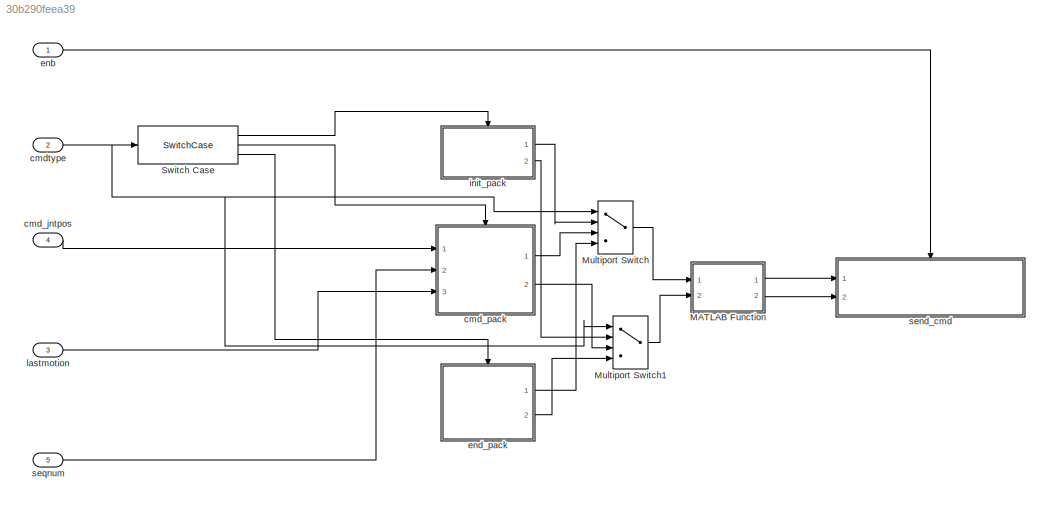
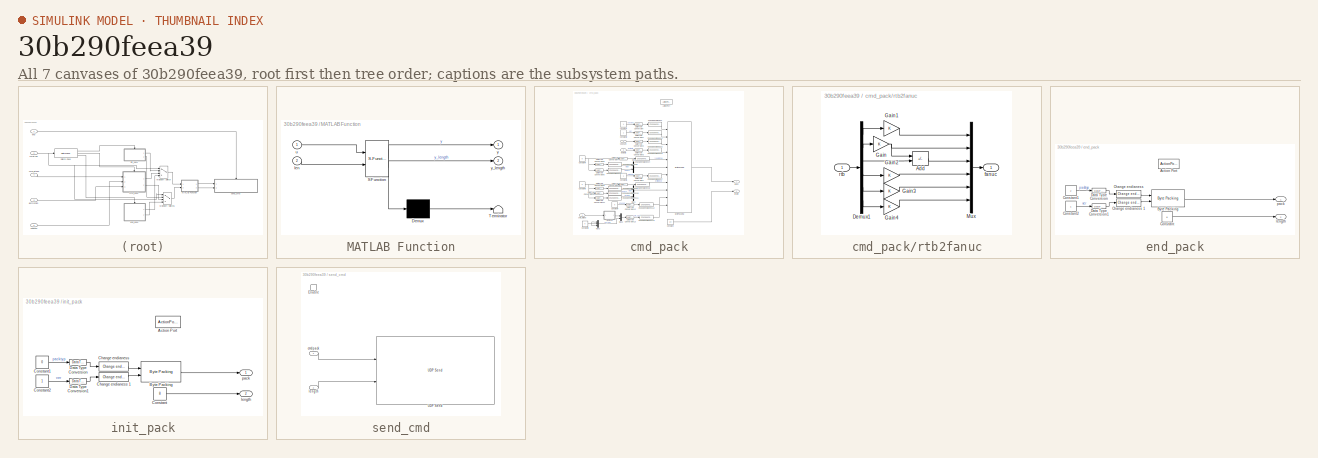
[diagram: thumbnail index - all 7 canvases of the model, root first then tree order]
MODEL slx_30b290feea39
KIND model
CONFIG AbsTol = auto
CONFIG EnableMultiTasking = off
CONFIG FixedStep = auto
CONFIG MaxStep = auto
CONFIG MinStep = auto
CONFIG RelTol = 1e-3
CONFIG SampleTimeConstraint = Unconstrained
CONFIG SolverName = FixedStepAuto
CONFIG StartTime = 0.0
CONFIG StopTime = inf
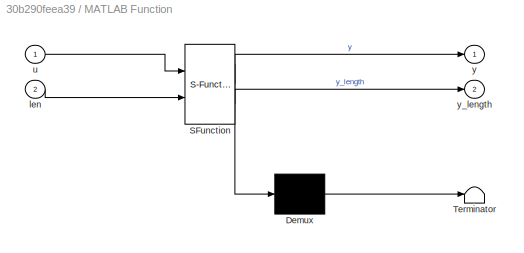
BLOCK [SubSystem] MATLAB Function
  ErrorFcn = Stateflow.Translate.translate
  PermitHierarchicalResolution = ExplicitOnly
  Ports = [2, 2]
  RequestExecContextInheritance = off
  SFBlockType = MATLAB Function
  TreatAsAtomicUnit = on
BLOCK [Demux] MATLAB Function/ Demux 
  Outputs = 1
  Ports = [1, 1]
BLOCK [S-Function] MATLAB Function/ SFunction 
  EnableBusSupport = on
  FunctionName = sf_sfun
  PortCounts = [2 3]
  Ports = [2, 3]
  SFcnIsStateOwnerBlock = off
  SFunctionDeploymentMode = off
  Tag = Stateflow S-Function 2
BLOCK [Terminator] MATLAB Function/ Terminator 
BLOCK [Inport] MATLAB Function/len
  Port = 2
BLOCK [Inport] MATLAB Function/u
BLOCK [Outport] MATLAB Function/y
  VectorParamsAs1DForOutWhenUnconnected = off
BLOCK [Outport] MATLAB Function/y_length
  Port = 2
  VectorParamsAs1DForOutWhenUnconnected = off
BLOCK [MultiPortSwitch] Multiport Switch
  AllowDiffInputSizes = on
  DataPortOrder = Zero-based contiguous
  InputSameDT = off
  Ports = [4, 1]
  SaturateOnIntegerOverflow = off
  zeroidx = on
BLOCK [MultiPortSwitch] Multiport Switch1
  DataPortOrder = Zero-based contiguous
  InputSameDT = off
  Ports = [4, 1]
  SaturateOnIntegerOverflow = off
  zeroidx = on
BLOCK [SwitchCase] Switch Case
  CaseConditions = {0,1,2}
  Ports = [1, 3]
  ShowDefaultCase = off
BLOCK [Inport] cmd_jntpos
  Port = 4
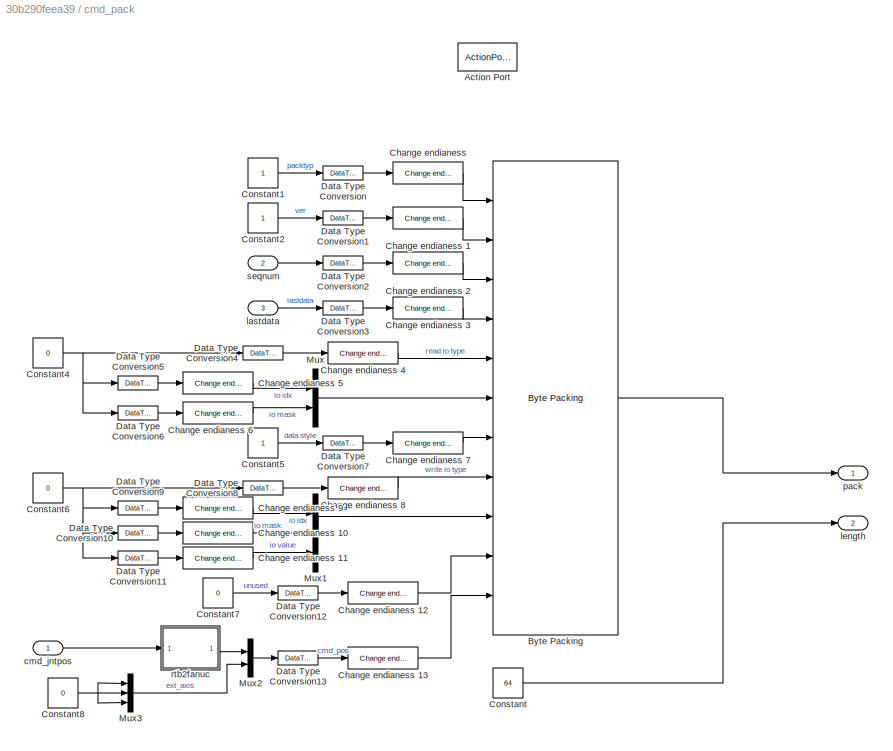
BLOCK [SubSystem] cmd_pack
  Ports = [3, 2, 0, 0, 0, 0, 0, 1]
  RequestExecContextInheritance = off
BLOCK [ActionPort] cmd_pack/Action Port
  ActionPortLabel = case [ 1 ]:
BLOCK [Reference] cmd_pack/Byte Packing   REF=slrealtimeutilitieslib/Byte Packing
  Ports = [11, 1]
  SourceBlock = slrealtimeutilitieslib/Byte Packing
  SourceProductBaseCode = XP
  SourceType = slrealtimebytepacking
BLOCK [Reference] cmd_pack/Change endianess   REF=slrealtimesharedmemorylib/Change endianess
  Ports = [1, 1]
  SourceBlock = slrealtimesharedmemorylib/Change endianess
  SourceProductBaseCode = XP
  SourceType = slreverseendian
BLOCK [Reference] cmd_pack/Change endianess 1  REF=slrealtimesharedmemorylib/Change endianess
  Ports = [1, 1]
  SourceBlock = slrealtimesharedmemorylib/Change endianess
  SourceProductBaseCode = XP
  SourceType = slreverseendian
BLOCK [Reference] cmd_pack/Change endianess 10  REF=slrealtimesharedmemorylib/Change endianess
  Ports = [1, 1]
  SourceBlock = slrealtimesharedmemorylib/Change endianess
  SourceProductBaseCode = XP
  SourceType = slreverseendian
BLOCK [Reference] cmd_pack/Change endianess 11  REF=slrealtimesharedmemorylib/Change endianess
  Ports = [1, 1]
  SourceBlock = slrealtimesharedmemorylib/Change endianess
  SourceProductBaseCode = XP
  SourceType = slreverseendian
BLOCK [Reference] cmd_pack/Change endianess 12  REF=slrealtimesharedmemorylib/Change endianess
  Ports = [1, 1]
  SourceBlock = slrealtimesharedmemorylib/Change endianess
  SourceProductBaseCode = XP
  SourceType = slreverseendian
BLOCK [Reference] cmd_pack/Change endianess 13  REF=slrealtimesharedmemorylib/Change endianess
  Ports = [1, 1]
  SourceBlock = slrealtimesharedmemorylib/Change endianess
  SourceProductBaseCode = XP
  SourceType = slreverseendian
BLOCK [Reference] cmd_pack/Change endianess 2  REF=slrealtimesharedmemorylib/Change endianess
  Ports = [1, 1]
  SourceBlock = slrealtimesharedmemorylib/Change endianess
  SourceProductBaseCode = XP
  SourceType = slreverseendian
BLOCK [Reference] cmd_pack/Change endianess 3  REF=slrealtimesharedmemorylib/Change endianess
  Ports = [1, 1]
  SourceBlock = slrealtimesharedmemorylib/Change endianess
  SourceProductBaseCode = XP
  SourceType = slreverseendian
BLOCK [Reference] cmd_pack/Change endianess 4  REF=slrealtimesharedmemorylib/Change endianess
  Ports = [1, 1]
  SourceBlock = slrealtimesharedmemorylib/Change endianess
  SourceProductBaseCode = XP
  SourceType = slreverseendian
BLOCK [Reference] cmd_pack/Change endianess 5  REF=slrealtimesharedmemorylib/Change endianess
  Ports = [1, 1]
  SourceBlock = slrealtimesharedmemorylib/Change endianess
  SourceProductBaseCode = XP
  SourceType = slreverseendian
BLOCK [Reference] cmd_pack/Change endianess 6  REF=slrealtimesharedmemorylib/Change endianess
  Ports = [1, 1]
  SourceBlock = slrealtimesharedmemorylib/Change endianess
  SourceProductBaseCode = XP
  SourceType = slreverseendian
BLOCK [Reference] cmd_pack/Change endianess 7  REF=slrealtimesharedmemorylib/Change endianess
  Ports = [1, 1]
  SourceBlock = slrealtimesharedmemorylib/Change endianess
  SourceProductBaseCode = XP
  SourceType = slreverseendian
BLOCK [Reference] cmd_pack/Change endianess 8  REF=slrealtimesharedmemorylib/Change endianess
  Ports = [1, 1]
  SourceBlock = slrealtimesharedmemorylib/Change endianess
  SourceProductBaseCode = XP
  SourceType = slreverseendian
BLOCK [Reference] cmd_pack/Change endianess 9  REF=slrealtimesharedmemorylib/Change endianess
  Ports = [1, 1]
  SourceBlock = slrealtimesharedmemorylib/Change endianess
  SourceProductBaseCode = XP
  SourceType = slreverseendian
BLOCK [Constant] cmd_pack/Constant
  Value = 64
BLOCK [Constant] cmd_pack/Constant1
BLOCK [Constant] cmd_pack/Constant2
BLOCK [Constant] cmd_pack/Constant4
  Value = 0
BLOCK [Constant] cmd_pack/Constant5
BLOCK [Constant] cmd_pack/Constant6
  Value = 0
BLOCK [Constant] cmd_pack/Constant7
  Value = 0
BLOCK [Constant] cmd_pack/Constant8
  Value = 0
BLOCK [DataTypeConversion] cmd_pack/Data Type Conversion
  OutDataTypeStr = uint32
  RndMeth = Floor
  SaturateOnIntegerOverflow = off
BLOCK [DataTypeConversion] cmd_pack/Data Type Conversion1
  OutDataTypeStr = uint32
  RndMeth = Floor
  SaturateOnIntegerOverflow = off
BLOCK [DataTypeConversion] cmd_pack/Data Type Conversion10
  OutDataTypeStr = uint16
  RndMeth = Floor
  SaturateOnIntegerOverflow = off
BLOCK [DataTypeConversion] cmd_pack/Data Type Conversion11
  OutDataTypeStr = uint16
  RndMeth = Floor
  SaturateOnIntegerOverflow = off
BLOCK [DataTypeConversion] cmd_pack/Data Type Conversion12
  OutDataTypeStr = uint16
  RndMeth = Floor
  SaturateOnIntegerOverflow = off
BLOCK [DataTypeConversion] cmd_pack/Data Type Conversion13
  OutDataTypeStr = single
  RndMeth = Floor
  SaturateOnIntegerOverflow = off
BLOCK [DataTypeConversion] cmd_pack/Data Type Conversion2
  OutDataTypeStr = uint32
  RndMeth = Floor
  SaturateOnIntegerOverflow = off
BLOCK [DataTypeConversion] cmd_pack/Data Type Conversion3
  OutDataTypeStr = uint8
  RndMeth = Floor
  SaturateOnIntegerOverflow = off
BLOCK [DataTypeConversion] cmd_pack/Data Type Conversion4
  OutDataTypeStr = uint8
  RndMeth = Floor
  SaturateOnIntegerOverflow = off
BLOCK [DataTypeConversion] cmd_pack/Data Type Conversion5
  OutDataTypeStr = uint16
  RndMeth = Floor
  SaturateOnIntegerOverflow = off
BLOCK [DataTypeConversion] cmd_pack/Data Type Conversion6
  OutDataTypeStr = uint16
  RndMeth = Floor
  SaturateOnIntegerOverflow = off
BLOCK [DataTypeConversion] cmd_pack/Data Type Conversion7
  OutDataTypeStr = uint8
  RndMeth = Floor
  SaturateOnIntegerOverflow = off
BLOCK [DataTypeConversion] cmd_pack/Data Type Conversion8
  OutDataTypeStr = uint8
  RndMeth = Floor
  SaturateOnIntegerOverflow = off
BLOCK [DataTypeConversion] cmd_pack/Data Type Conversion9
  OutDataTypeStr = uint16
  RndMeth = Floor
  SaturateOnIntegerOverflow = off
BLOCK [Mux] cmd_pack/Mux
  DisplayOption = bar
  Inputs = 2
  Ports = [2, 1]
BLOCK [Mux] cmd_pack/Mux1
  DisplayOption = bar
  Inputs = 3
  Ports = [3, 1]
BLOCK [Mux] cmd_pack/Mux2
  DisplayOption = bar
  Inputs = [6,3]
  Ports = [2, 1]
BLOCK [Mux] cmd_pack/Mux3
  DisplayOption = bar
  Inputs = 3
  Ports = [3, 1]
BLOCK [Inport] cmd_pack/cmd_jntpos
BLOCK [Inport] cmd_pack/lastdata
  Port = 3
BLOCK [Outport] cmd_pack/length
  Port = 2
  VectorParamsAs1DForOutWhenUnconnected = off
BLOCK [Outport] cmd_pack/pack
  VectorParamsAs1DForOutWhenUnconnected = off
BLOCK [SubSystem] cmd_pack/rtb2fanuc
  Ports = [1, 1]
  RequestExecContextInheritance = off
BLOCK [Sum] cmd_pack/rtb2fanuc/Add
  IconShape = rectangular
  Inputs = -+
  Ports = [2, 1]
BLOCK [Demux] cmd_pack/rtb2fanuc/Demux1
  Outputs = 6
  Ports = [1, 6]
BLOCK [Gain] cmd_pack/rtb2fanuc/Gain
BLOCK [Gain] cmd_pack/rtb2fanuc/Gain1
BLOCK [Gain] cmd_pack/rtb2fanuc/Gain2
BLOCK [Gain] cmd_pack/rtb2fanuc/Gain3
BLOCK [Gain] cmd_pack/rtb2fanuc/Gain4
BLOCK [Mux] cmd_pack/rtb2fanuc/Mux
  DisplayOption = bar
  Inputs = 6
  Ports = [6, 1]
BLOCK [Outport] cmd_pack/rtb2fanuc/fanuc
  VectorParamsAs1DForOutWhenUnconnected = off
BLOCK [Inport] cmd_pack/rtb2fanuc/rtb
BLOCK [Inport] cmd_pack/seqnum
  Port = 2
BLOCK [Inport] cmdtype
  Port = 2
BLOCK [Inport] enb
BLOCK [SubSystem] end_pack
  Ports = [0, 2, 0, 0, 0, 0, 0, 1]
  RequestExecContextInheritance = off
BLOCK [ActionPort] end_pack/Action Port
  ActionPortLabel = case [ 2 ]:
BLOCK [Reference] end_pack/Byte Packing   REF=slrealtimeutilitieslib/Byte Packing
  Ports = [2, 1]
  SourceBlock = slrealtimeutilitieslib/Byte Packing
  SourceProductBaseCode = XP
  SourceType = slrealtimebytepacking
BLOCK [Reference] end_pack/Change endianess   REF=slrealtimesharedmemorylib/Change endianess
  Ports = [1, 1]
  SourceBlock = slrealtimesharedmemorylib/Change endianess
  SourceProductBaseCode = XP
  SourceType = slreverseendian
BLOCK [Reference] end_pack/Change endianess 1  REF=slrealtimesharedmemorylib/Change endianess
  Ports = [1, 1]
  SourceBlock = slrealtimesharedmemorylib/Change endianess
  SourceProductBaseCode = XP
  SourceType = slreverseendian
BLOCK [Constant] end_pack/Constant
  Value = 8
BLOCK [Constant] end_pack/Constant1
  Value = 2
BLOCK [Constant] end_pack/Constant2
BLOCK [DataTypeConversion] end_pack/Data Type Conversion
  OutDataTypeStr = uint32
  RndMeth = Floor
  SaturateOnIntegerOverflow = off
BLOCK [DataTypeConversion] end_pack/Data Type Conversion1
  OutDataTypeStr = uint32
  RndMeth = Floor
  SaturateOnIntegerOverflow = off
BLOCK [Outport] end_pack/length
  Port = 2
  VectorParamsAs1DForOutWhenUnconnected = off
BLOCK [Outport] end_pack/pack
  VectorParamsAs1DForOutWhenUnconnected = off
BLOCK [SubSystem] init_pack
  Ports = [0, 2, 0, 0, 0, 0, 0, 1]
  RequestExecContextInheritance = off
  TreatAsAtomicUnit = on
BLOCK [ActionPort] init_pack/Action Port
  ActionPortLabel = case [ 0 ]:
BLOCK [Reference] init_pack/Byte Packing   REF=slrealtimeutilitieslib/Byte Packing
  Ports = [2, 1]
  SourceBlock = slrealtimeutilitieslib/Byte Packing
  SourceProductBaseCode = XP
  SourceType = slrealtimebytepacking
BLOCK [Reference] init_pack/Change endianess   REF=slrealtimesharedmemorylib/Change endianess
  Ports = [1, 1]
  SourceBlock = slrealtimesharedmemorylib/Change endianess
  SourceProductBaseCode = XP
  SourceType = slreverseendian
BLOCK [Reference] init_pack/Change endianess 1  REF=slrealtimesharedmemorylib/Change endianess
  Ports = [1, 1]
  SourceBlock = slrealtimesharedmemorylib/Change endianess
  SourceProductBaseCode = XP
  SourceType = slreverseendian
BLOCK [Constant] init_pack/Constant
  Value = 8
BLOCK [Constant] init_pack/Constant1
  Value = 0
BLOCK [Constant] init_pack/Constant2
BLOCK [DataTypeConversion] init_pack/Data Type Conversion
  OutDataTypeStr = uint32
  RndMeth = Floor
  SaturateOnIntegerOverflow = off
BLOCK [DataTypeConversion] init_pack/Data Type Conversion1
  OutDataTypeStr = uint32
  RndMeth = Floor
  SaturateOnIntegerOverflow = off
BLOCK [Outport] init_pack/length
  Port = 2
  VectorParamsAs1DForOutWhenUnconnected = off
BLOCK [Outport] init_pack/pack
  VectorParamsAs1DForOutWhenUnconnected = off
BLOCK [Inport] lastmotion
  Port = 3
BLOCK [SubSystem] send_cmd
  Ports = [2, 0, 1]
  RequestExecContextInheritance = off
BLOCK [EnablePort] send_cmd/Enable
  Ports = []
BLOCK [Reference] send_cmd/UDP Send  REF=slrealtimeiplib/UDP Send
  Ports = [2]
  SourceBlock = slrealtimeiplib/UDP Send
  SourceProductBaseCode = XP
  SourceType = slrealtimeudpsend
BLOCK [Inport] send_cmd/cmdpack
BLOCK [Inport] send_cmd/length
  Port = 2
BLOCK [Inport] seqnum
  Port = 5
LINE MATLAB Function:1 -> send_cmd:1
LINE MATLAB Function:2 -> send_cmd:2
LINE Multiport Switch1:1 -> MATLAB Function:2
LINE Multiport Switch:1 -> MATLAB Function:1
LINE Switch Case:1 -> init_pack:ifaction
LINE Switch Case:2 -> cmd_pack:ifaction
LINE Switch Case:3 -> end_pack:ifaction
LINE cmd_jntpos:1 -> cmd_pack:1
LINE cmd_pack/Byte Packing :1 -> cmd_pack/pack:1
LINE cmd_pack/Change endianess 10:1 -> cmd_pack/Mux1:2
LINE cmd_pack/Change endianess 11:1 -> cmd_pack/Mux1:3
LINE cmd_pack/Change endianess 12:1 -> cmd_pack/Byte Packing :10
LINE cmd_pack/Change endianess 13:1 -> cmd_pack/Byte Packing :11
LINE cmd_pack/Change endianess 1:1 -> cmd_pack/Byte Packing :2
LINE cmd_pack/Change endianess 2:1 -> cmd_pack/Byte Packing :3
LINE cmd_pack/Change endianess 3:1 -> cmd_pack/Byte Packing :4
LINE cmd_pack/Change endianess 4:1 -> cmd_pack/Byte Packing :5
LINE cmd_pack/Change endianess 5:1 -> cmd_pack/Mux:1
LINE cmd_pack/Change endianess 6:1 -> cmd_pack/Mux:2
LINE cmd_pack/Change endianess 7:1 -> cmd_pack/Byte Packing :7
LINE cmd_pack/Change endianess 8:1 -> cmd_pack/Byte Packing :8
LINE cmd_pack/Change endianess 9:1 -> cmd_pack/Mux1:1
LINE cmd_pack/Change endianess :1 -> cmd_pack/Byte Packing :1
LINE cmd_pack/Constant1:1 -> cmd_pack/Data Type Conversion:1
LINE cmd_pack/Constant2:1 -> cmd_pack/Data Type Conversion1:1
NET cmd_pack/Constant4:1 -> cmd_pack/Data Type Conversion4:1, cmd_pack/Data Type Conversion5:1, cmd_pack/Data Type Conversion6:1
LINE cmd_pack/Constant5:1 -> cmd_pack/Data Type Conversion7:1
NET cmd_pack/Constant6:1 -> cmd_pack/Data Type Conversion10:1, cmd_pack/Data Type Conversion11:1, cmd_pack/Data Type Conversion8:1, cmd_pack/Data Type Conversion9:1
LINE cmd_pack/Constant7:1 -> cmd_pack/Data Type Conversion12:1
NET cmd_pack/Constant8:1 -> cmd_pack/Mux3:1, cmd_pack/Mux3:2, cmd_pack/Mux3:3
LINE cmd_pack/Constant:1 -> cmd_pack/length:1
LINE cmd_pack/Data Type Conversion10:1 -> cmd_pack/Change endianess 10:1
LINE cmd_pack/Data Type Conversion11:1 -> cmd_pack/Change endianess 11:1
LINE cmd_pack/Data Type Conversion12:1 -> cmd_pack/Change endianess 12:1
LINE cmd_pack/Data Type Conversion13:1 -> cmd_pack/Change endianess 13:1
LINE cmd_pack/Data Type Conversion1:1 -> cmd_pack/Change endianess 1:1
LINE cmd_pack/Data Type Conversion2:1 -> cmd_pack/Change endianess 2:1
LINE cmd_pack/Data Type Conversion3:1 -> cmd_pack/Change endianess 3:1
LINE cmd_pack/Data Type Conversion4:1 -> cmd_pack/Change endianess 4:1
LINE cmd_pack/Data Type Conversion5:1 -> cmd_pack/Change endianess 5:1
LINE cmd_pack/Data Type Conversion6:1 -> cmd_pack/Change endianess 6:1
LINE cmd_pack/Data Type Conversion7:1 -> cmd_pack/Change endianess 7:1
LINE cmd_pack/Data Type Conversion8:1 -> cmd_pack/Change endianess 8:1
LINE cmd_pack/Data Type Conversion9:1 -> cmd_pack/Change endianess 9:1
LINE cmd_pack/Data Type Conversion:1 -> cmd_pack/Change endianess :1
LINE cmd_pack/Mux1:1 -> cmd_pack/Byte Packing :9
LINE cmd_pack/Mux2:1 -> cmd_pack/Data Type Conversion13:1
LINE cmd_pack/Mux3:1 -> cmd_pack/Mux2:2
LINE cmd_pack/Mux:1 -> cmd_pack/Byte Packing :6
LINE cmd_pack/cmd_jntpos:1 -> cmd_pack/rtb2fanuc:1
LINE cmd_pack/lastdata:1 -> cmd_pack/Data Type Conversion3:1
LINE cmd_pack/rtb2fanuc/Add:1 -> cmd_pack/rtb2fanuc/Mux:3
LINE cmd_pack/rtb2fanuc/Demux1:1 -> cmd_pack/rtb2fanuc/Gain1:1
LINE cmd_pack/rtb2fanuc/Demux1:2 -> cmd_pack/rtb2fanuc/Gain:1
LINE cmd_pack/rtb2fanuc/Demux1:3 -> cmd_pack/rtb2fanuc/Add:2
LINE cmd_pack/rtb2fanuc/Demux1:4 -> cmd_pack/rtb2fanuc/Gain2:1
LINE cmd_pack/rtb2fanuc/Demux1:5 -> cmd_pack/rtb2fanuc/Gain3:1
LINE cmd_pack/rtb2fanuc/Demux1:6 -> cmd_pack/rtb2fanuc/Gain4:1
LINE cmd_pack/rtb2fanuc/Gain1:1 -> cmd_pack/rtb2fanuc/Mux:1
LINE cmd_pack/rtb2fanuc/Gain2:1 -> cmd_pack/rtb2fanuc/Mux:4
LINE cmd_pack/rtb2fanuc/Gain3:1 -> cmd_pack/rtb2fanuc/Mux:5
LINE cmd_pack/rtb2fanuc/Gain4:1 -> cmd_pack/rtb2fanuc/Mux:6
NET cmd_pack/rtb2fanuc/Gain:1 -> cmd_pack/rtb2fanuc/Add:1, cmd_pack/rtb2fanuc/Mux:2
LINE cmd_pack/rtb2fanuc/Mux:1 -> cmd_pack/rtb2fanuc/fanuc:1
LINE cmd_pack/rtb2fanuc/rtb:1 -> cmd_pack/rtb2fanuc/Demux1:1
LINE cmd_pack/rtb2fanuc:1 -> cmd_pack/Mux2:1
LINE cmd_pack/seqnum:1 -> cmd_pack/Data Type Conversion2:1
LINE cmd_pack:1 -> Multiport Switch:3
LINE cmd_pack:2 -> Multiport Switch1:3
NET cmdtype:1 -> Multiport Switch1:1, Multiport Switch:1, Switch Case:1
LINE enb:1 -> send_cmd:enable
LINE end_pack/Byte Packing :1 -> end_pack/pack:1
LINE end_pack/Change endianess 1:1 -> end_pack/Byte Packing :2
LINE end_pack/Change endianess :1 -> end_pack/Byte Packing :1
LINE end_pack/Constant1:1 -> end_pack/Data Type Conversion:1
LINE end_pack/Constant2:1 -> end_pack/Data Type Conversion1:1
LINE end_pack/Constant:1 -> end_pack/length:1
LINE end_pack/Data Type Conversion1:1 -> end_pack/Change endianess 1:1
LINE end_pack/Data Type Conversion:1 -> end_pack/Change endianess :1
LINE end_pack:1 -> Multiport Switch:4
LINE end_pack:2 -> Multiport Switch1:4
LINE init_pack/Byte Packing :1 -> init_pack/pack:1
LINE init_pack/Change endianess 1:1 -> init_pack/Byte Packing :2
LINE init_pack/Change endianess :1 -> init_pack/Byte Packing :1
LINE init_pack/Constant1:1 -> init_pack/Data Type Conversion:1
LINE init_pack/Constant2:1 -> init_pack/Data Type Conversion1:1
LINE init_pack/Constant:1 -> init_pack/length:1
LINE init_pack/Data Type Conversion1:1 -> init_pack/Change endianess 1:1
LINE init_pack/Data Type Conversion:1 -> init_pack/Change endianess :1
LINE init_pack:1 -> Multiport Switch:2
LINE init_pack:2 -> Multiport Switch1:2
LINE lastmotion:1 -> cmd_pack:3
LINE send_cmd/cmdpack:1 -> send_cmd/UDP Send:1
LINE send_cmd/length:1 -> send_cmd/UDP Send:2
LINE seqnum:1 -> cmd_pack:2
note: NET lines group one-source signal fan-out (src -> all destinations, sorted); 1:1 wires keep LINE
CHART MATLAB Function states=1 transitions=1
  STATE_LABEL 'eML_blk_kernel()'
  STATE_LABEL 'SCRIPT:\nfunction [y,y_length] = fcn(u,len)\ny = uint8(zeros(132,1));\ny_length = len;\nfor a = 1:y_length\n    y(a) = u(a);\nend'
CHART  states=0 transitions=0
